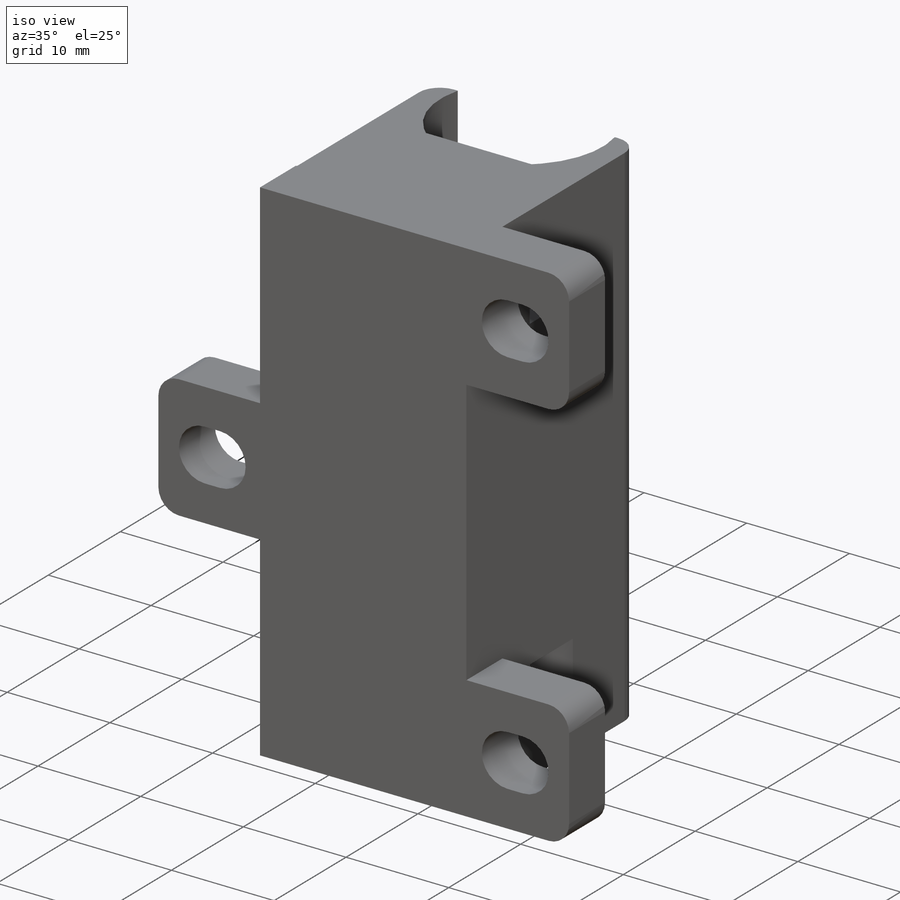
[diagram: iso view]
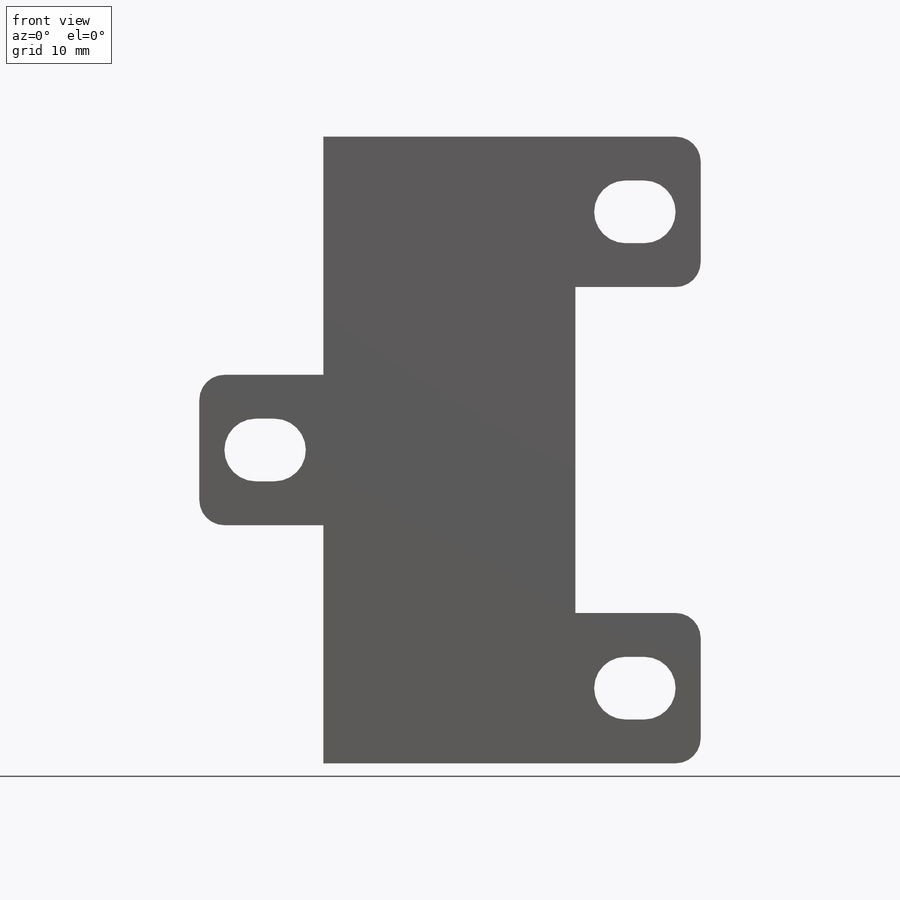
[diagram: front view]
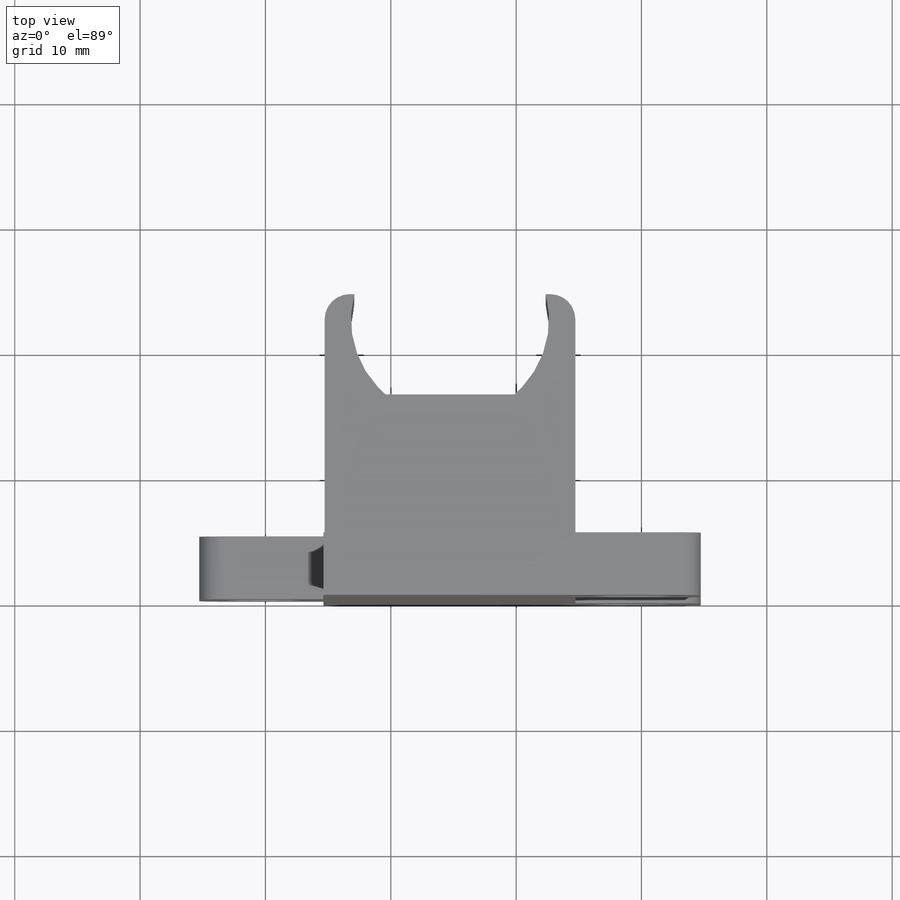
[diagram: top view]
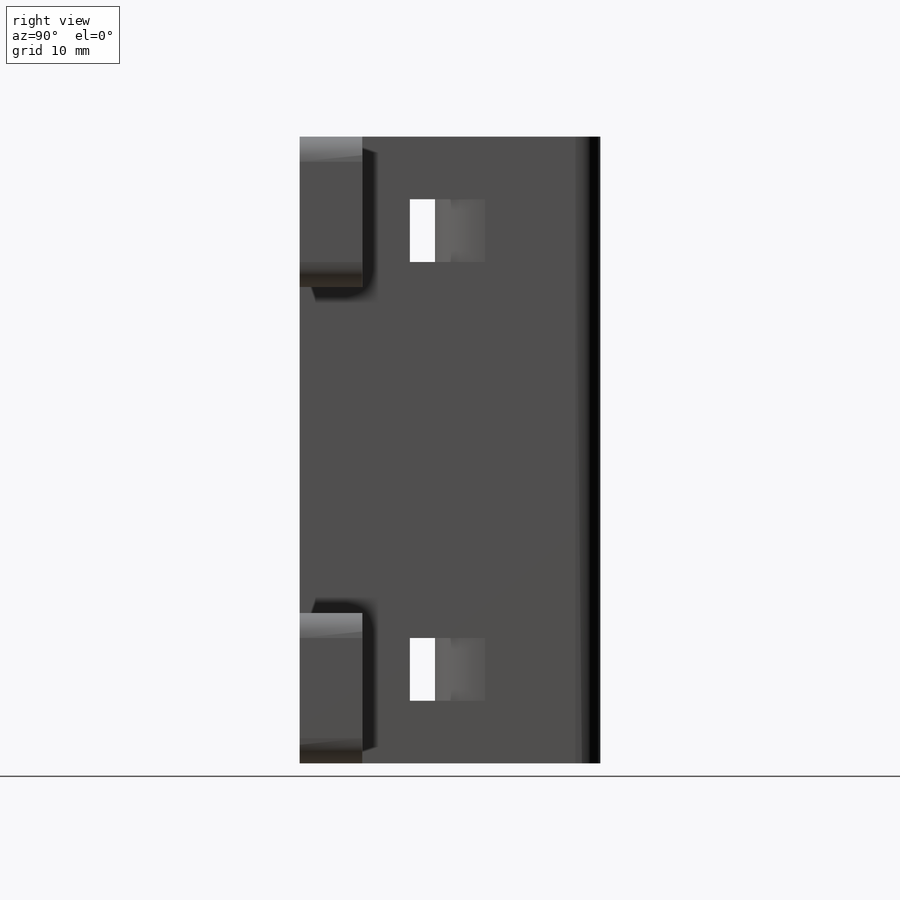
[diagram: right view]
SOLIDWORKS PART (.sldprt)
format: sldprt  version: not decoded by parser v0  size: 303,104 bytes
history: native  units: mm
features: sketch x4, fillet x3, extrude x2, cut_extrude x2, material x1, plane x1 (+11 scaffold rows collapsed)
feature tree (24):
  scaffold x11  (default folders/planes/origin — collapsed)
  material  "Material <not specified>"
  sketch  "Sketch1"  dims[c1.D1=15.5mm c1.D2=1.0mm c1.D6=7.9mm c2.D1=21.5mm c3.D1=22.0mm c3.D2=10.0mm c3.D3=2.0mm c3.D4=5.0mm c3.D5=20.0mm]
  extrude  "Boss-Extrude1"  Depth=50mm
  plane  "Plane1"  Offset=8mm
  sketch  "Sketch2"  dims[c1.D1=2.5mm c1.D2=~14.553926mm c2.D1=2.5mm c2.D2=14.55mm c3.D1=2.0mm c3.D2=2.0mm]
  extrude  "Boss-Extrude2"  Depth=10mm
  fillet  "Fillet1"  Radius=2mm
  sketch  "Sketch3"  dims[c1.D1=4.5mm c1.D5=4.5mm c2.D1=8.0mm c2.D2=5.0mm c2.D5=8.0mm c3.D1=6.0mm c3.D2=4.5mm c3.D3=~27.065768mm c3.D4=10.0mm c4.D3=6.0mm c4.D4=6.0mm c4.D5=6.0mm c4.D6=4.5mm c4.D7=25.0mm c4.D8=4.5mm c4.D9=~20.618763mm c4.D10=~9.897545mm c5.D9=6.0mm c5.D10=~19.810452mm c5.D11=~9.897545mm c6.D10=6.0mm]
  cut_extrude  "Cut-Extrude1"  [1 undecoded]
  sketch  "Sketch4"  dims[c1.D1=5.0mm c1.D2=2.0mm c2.D1=5.0mm c2.D2=2.0]
  cut_extrude  "Cut-Extrude2"  [1 undecoded]
  fillet  "Fillet2"  Radius=4mm
  fillet  "Fillet3"  Radius=2mm
decode coverage: 9 of 11 modeling features carry decoded parameters
note: ~ marks probable driven/reference dimensions
note: 2 parameter values undecoded
note: suppression state not decoded; provenance and decode notes live in map.json
